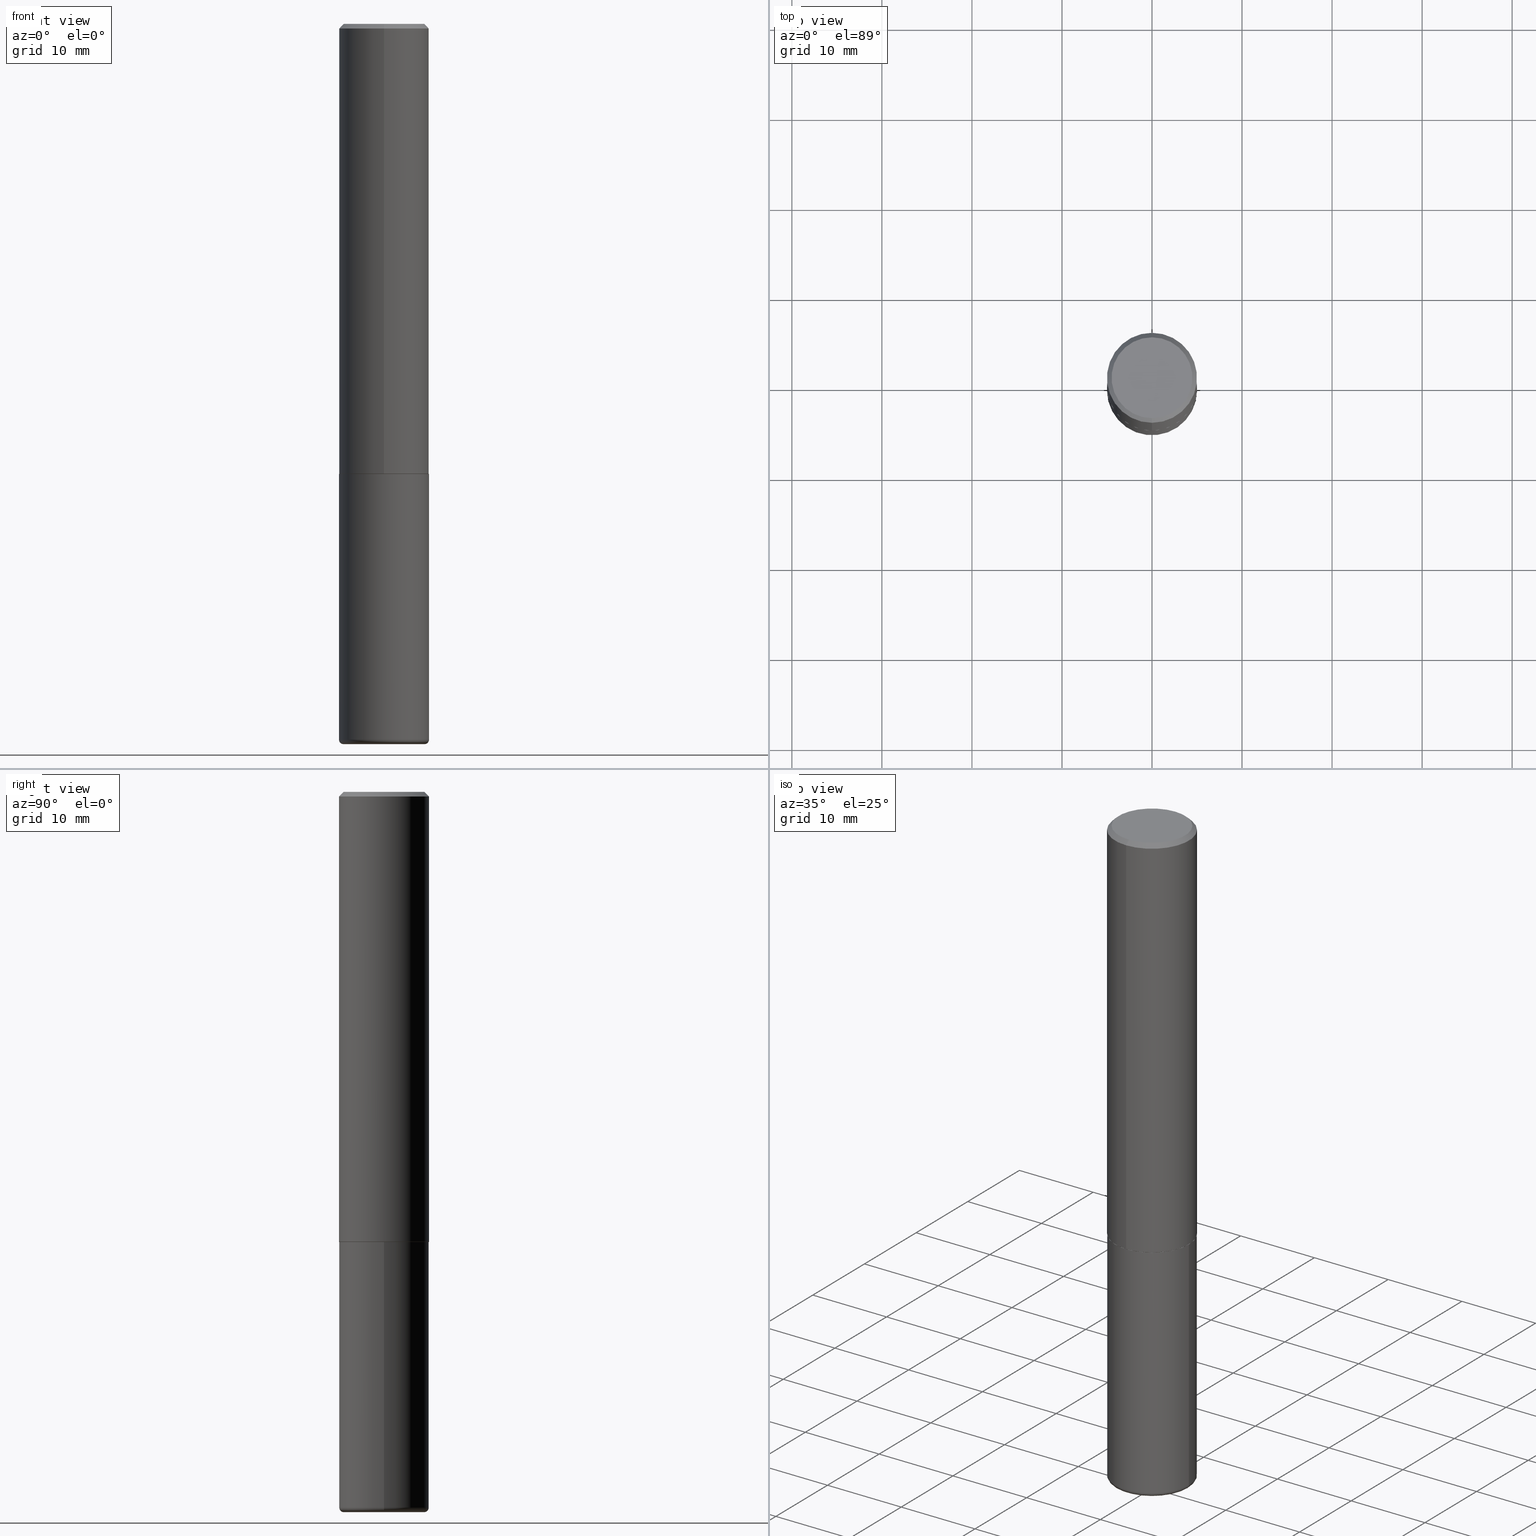
[diagram: canonical four-view strip — front | top / right | iso, engineering-drawing reading convention]
A machine part, canonical four-view strip (front | top / right | iso — engineering-drawing reading convention). The complete STEP part file that produces these views, byte-faithful:
ISO-10303-21;
HEADER;
FILE_DESCRIPTION (( 'STEP AP203' ),
    '1' );
FILE_NAME ('74413.STEP',
    '2024-03-06T15:12:11',
    ( '' ),
    ( '' ),
    'SwSTEP 2.0',
    'SolidWorks 2023',
    '' );
FILE_SCHEMA (( 'CONFIG_CONTROL_DESIGN' ));
ENDSEC;

DATA;
#1 = CARTESIAN_POINT ( 'NONE',  ( 1.374596203102542200E-15, 0.1968499999999999694, -0.02000000000000072900 ) ) ;
#2 = ADVANCED_FACE ( 'NONE', ( #105 ), #323, .T. ) ;
#3 = ADVANCED_FACE ( 'NONE', ( #360 ), #148, .T. ) ;
#4 = APPROVAL_ROLE ( '' ) ;
#5 = CARTESIAN_POINT ( 'NONE',  ( 0.1968499999999999417, -1.230258364554770273E-14, -3.129900000000000571 ) ) ;
#6 = CLOSED_SHELL ( 'NONE', ( #352, #2, #366, #402, #290, #66 ) ) ;
#7 = AXIS2_PLACEMENT_3D ( 'NONE', #239, #138, #301 ) ;
#8 = DIRECTION ( 'NONE',  ( -2.445268841296851437E-29, 3.491767699944464545E-15, 1.000000000000000000 ) ) ;
#9 = ORIENTED_EDGE ( 'NONE', *, *, #195, .F. ) ;
#10 = CYLINDRICAL_SURFACE ( 'NONE', #192, 0.1968499999999999694 ) ;
#11 = ORIENTED_EDGE ( 'NONE', *, *, #340, .T. ) ;
#12 = DATE_AND_TIME ( #57, #39 ) ;
#13 = EDGE_LOOP ( 'NONE', ( #9, #234 ) ) ;
#14 = CC_DESIGN_PERSON_AND_ORGANIZATION_ASSIGNMENT ( #391, #325, ( #266 ) ) ;
#15 = AXIS2_PLACEMENT_3D ( 'NONE', #230, #294, #189 ) ;
#16 = SECURITY_CLASSIFICATION ( '', '', #341 ) ;
#17 = EDGE_LOOP ( 'NONE', ( #58, #178, #314, #363 ) ) ;
#18 = ORIENTED_EDGE ( 'NONE', *, *, #28, .F. ) ;
#19 = CC_DESIGN_DATE_AND_TIME_ASSIGNMENT ( #277, #374, ( #262 ) ) ;
#20 = ORIENTED_EDGE ( 'NONE', *, *, #208, .F. ) ;
#21 = AXIS2_PLACEMENT_3D ( 'NONE', #313, #289, #196 ) ;
#22 = CC_DESIGN_APPROVAL ( #274, ( #16 ) ) ;
#23 = CALENDAR_DATE ( 2024, 6, 3 ) ;
#24 = DIRECTION ( 'NONE',  ( -6.982962677686265922E-15, -1.000000000000000000, 3.491767699944464545E-15 ) ) ;
#25 = DIRECTION ( 'NONE',  ( 2.438088387897960049E-29, -3.491481338843145188E-15, -1.000000000000000000 ) ) ;
#26 = VERTEX_POINT ( 'NONE', #95 ) ;
#27 = FACE_OUTER_BOUND ( 'NONE', #211, .T. ) ;
#28 = EDGE_CURVE ( 'NONE', #109, #334, #322, .T. ) ;
#29 = LINE ( 'NONE', #346, #117 ) ;
#30 = CIRCLE ( 'NONE', #235, 0.1968500000000000527 ) ;
#31 = ORIENTED_EDGE ( 'NONE', *, *, #101, .F. ) ;
#32 = DIRECTION ( 'NONE',  ( 1.000000000000000000, -6.982962677686269866E-15, 0.000000000000000000 ) ) ;
#33 = CARTESIAN_POINT ( 'NONE',  ( -1.350489030861325626E-15, -0.1968500000000001082, -0.01999999999999935510 ) ) ;
#34 = APPROVAL ( #143, 'UNSPECIFIED' ) ;
#35 = LINE ( 'NONE', #417, #264 ) ;
#36 = DESIGN_CONTEXT ( 'detailed design', #111, 'design' ) ;
#37 = DIRECTION ( 'NONE',  ( -2.445268841296851437E-29, 3.491767699944464545E-15, 1.000000000000000000 ) ) ;
#38 = CIRCLE ( 'NONE', #385, 0.1968500000000000250 ) ;
#39 = LOCAL_TIME ( 10, 12, 11.00000000000000000, #404 ) ;
#40 = APPLICATION_PROTOCOL_DEFINITION ( 'international standard', 'config_control_design', 1994, #111 ) ;
#41 = CALENDAR_DATE ( 2024, 6, 3 ) ;
#42 = ORIENTED_EDGE ( 'NONE', *, *, #142, .T. ) ;
#43 = APPROVAL_DATE_TIME ( #356, #34 ) ;
#44 = VECTOR ( 'NONE', #122, 39.37007874015748143 ) ;
#45 = DIRECTION ( 'NONE',  ( 1.000000000000000000, 0.000000000000000000, 0.000000000000000000 ) ) ;
#46 = VERTEX_POINT ( 'NONE', #119 ) ;
#47 = ADVANCED_FACE ( 'NONE', ( #338 ), #251, .T. ) ;
#48 = ORIENTED_EDGE ( 'NONE', *, *, #142, .F. ) ;
#49 = CARTESIAN_POINT ( 'NONE',  ( -1.367613240424807079E-15, -0.1958500000000068797, -1.968499999999999028 ) ) ;
#50 = AXIS2_PLACEMENT_3D ( 'NONE', #280, #372, #349 ) ;
#51 = APPROVAL_PERSON_ORGANIZATION ( #219, #274, #52 ) ;
#52 = APPROVAL_ROLE ( '' ) ;
#53 = VERTEX_POINT ( 'NONE', #181 ) ;
#54 = CARTESIAN_POINT ( 'NONE',  ( 0.000000000000000000, 0.000000000000000000, 0.000000000000000000 ) ) ;
#55 = ORIENTED_EDGE ( 'NONE', *, *, #297, .T. ) ;
#56 = CIRCLE ( 'NONE', #299, 0.1968500000000000250 ) ;
#57 = CALENDAR_DATE ( 2024, 6, 3 ) ;
#58 = ORIENTED_EDGE ( 'NONE', *, *, #167, .F. ) ;
#59 = DIRECTION ( 'NONE',  ( 1.000000000000000000, -6.982962677686267499E-15, 0.000000000000000000 ) ) ;
#60 = EDGE_CURVE ( 'NONE', #82, #46, #157, .T. ) ;
#61 = DIRECTION ( 'NONE',  ( 6.982962677686265922E-15, 1.000000000000000000, -3.491767699944464940E-15 ) ) ;
#62 = ORIENTED_EDGE ( 'NONE', *, *, #60, .F. ) ;
#63 = CARTESIAN_POINT ( 'NONE',  ( -0.1968500000000000250, -7.501780853635190206E-15, -1.968499999999999694 ) ) ;
#64 = CARTESIAN_POINT ( 'NONE',  ( 4.813905344975440714E-29, -6.872981015512730918E-15, -1.968499999999999694 ) ) ;
#65 = LINE ( 'NONE', #33, #198 ) ;
#66 = ADVANCED_FACE ( 'NONE', ( #375 ), #89, .T. ) ;
#67 = DIRECTION ( 'NONE',  ( 1.000000000000000000, -6.982962677686261189E-15, 0.000000000000000000 ) ) ;
#68 = CARTESIAN_POINT ( 'NONE',  ( 4.813511714092851266E-29, -6.873544717340677315E-15, -1.968499999999999694 ) ) ;
#69 = DIRECTION ( 'NONE',  ( 2.445268841296850876E-29, -3.491767699944464940E-15, -1.000000000000000000 ) ) ;
#70 = AXIS2_PLACEMENT_3D ( 'NONE', #318, #126, #226 ) ;
#71 = EDGE_CURVE ( 'NONE', #279, #53, #276, .T. ) ;
#72 = CARTESIAN_POINT ( 'NONE',  ( 0.000000000000000000, 0.000000000000000000, 0.000000000000000000 ) ) ;
#73 = CARTESIAN_POINT ( 'NONE',  ( 1.398703375343757985E-15, 0.1968500000000001360, -6.873544717340683232E-16 ) ) ;
#74 = AXIS2_PLACEMENT_3D ( 'NONE', #76, #304, #253 ) ;
#75 = ORIENTED_EDGE ( 'NONE', *, *, #71, .F. ) ;
#76 = CARTESIAN_POINT ( 'NONE',  ( 7.654072816478859974E-29, -1.092798744244516270E-14, -3.129900000000000571 ) ) ;
#77 = CIRCLE ( 'NONE', #176, 0.1771500000000000019 ) ;
#78 = CC_DESIGN_DATE_AND_TIME_ASSIGNMENT ( #121, #180, ( #16 ) ) ;
#79 = DIRECTION ( 'NONE',  ( -2.445268841296851437E-29, 3.491767699944464545E-15, 1.000000000000000000 ) ) ;
#80 = ORIENTED_EDGE ( 'NONE', *, *, #106, .T. ) ;
#81 = APPROVAL_STATUS ( 'not_yet_approved' ) ;
#82 = VERTEX_POINT ( 'NONE', #256 ) ;
#83 = VECTOR ( 'NONE', #236, 39.37007874015748143 ) ;
#84 = ADVANCED_BREP_SHAPE_REPRESENTATION ( '74413', ( #395, #270, #378 ), #300 ) ;
#85 = APPROVAL_DATE_TIME ( #12, #274 ) ;
#86 = ORIENTED_EDGE ( 'NONE', *, *, #71, .T. ) ;
#87 = PERSON_AND_ORGANIZATION_ROLE ( 'creator' ) ;
#88 = PERSON_AND_ORGANIZATION_ROLE ( 'design_supplier' ) ;
#89 = PLANE ( 'NONE',  #110 ) ;
#90 = AXIS2_PLACEMENT_3D ( 'NONE', #257, #162, #131 ) ;
#91 = EDGE_CURVE ( 'NONE', #153, #26, #30, .T. ) ;
#92 = ORIENTED_EDGE ( 'NONE', *, *, #227, .F. ) ;
#93 = DIRECTION ( 'NONE',  ( -2.445268841296851437E-29, 3.491767699944464545E-15, 1.000000000000000000 ) ) ;
#94 = DIRECTION ( 'NONE',  ( -6.982962677686265133E-15, -1.000000000000000000, 3.491137977679279029E-15 ) ) ;
#95 = CARTESIAN_POINT ( 'NONE',  ( -1.350489030861325626E-15, -0.1968500000000001082, -0.01999999999999935510 ) ) ;
#96 = CARTESIAN_POINT ( 'NONE',  ( 7.702248551960706711E-29, -1.099676962482037231E-14, -3.149600000000000399 ) ) ;
#97 = EDGE_LOOP ( 'NONE', ( #62, #392, #55, #390 ) ) ;
#98 = LINE ( 'NONE', #225, #83 ) ;
#99 = CARTESIAN_POINT ( 'NONE',  ( -1.367613240424807079E-15, -0.1958500000000068797, -1.968499999999999028 ) ) ;
#100 = CARTESIAN_POINT ( 'NONE',  ( -1.281884050883609900E-15, -0.1768499999999998407, 8.395324101811677409E-16 ) ) ;
#101 = EDGE_CURVE ( 'NONE', #334, #273, #29, .T. ) ;
#102 = VECTOR ( 'NONE', #193, 39.37007874015748854 ) ;
#103 = COORDINATED_UNIVERSAL_TIME_OFFSET ( 5, 0, .BEHIND. ) ;
#104 = EDGE_LOOP ( 'NONE', ( #271, #269 ) ) ;
#105 = FACE_OUTER_BOUND ( 'NONE', #187, .T. ) ;
#106 = EDGE_CURVE ( 'NONE', #179, #273, #38, .T. ) ;
#107 = DIRECTION ( 'NONE',  ( 1.000000000000000000, -6.982962677686266711E-15, 4.876176775795935793E-29 ) ) ;
#108 = ORIENTED_EDGE ( 'NONE', *, *, #101, .T. ) ;
#109 = VERTEX_POINT ( 'NONE', #214 ) ;
#110 = AXIS2_PLACEMENT_3D ( 'NONE', #311, #25, #412 ) ;
#111 = APPLICATION_CONTEXT ( 'configuration controlled 3d designs of mechanical parts and assemblies' ) ;
#112 = APPROVAL_PERSON_ORGANIZATION ( #156, #183, #410 ) ;
#113 = SHAPE_DEFINITION_REPRESENTATION ( #249, #84 ) ;
#114 = DIMENSIONAL_EXPONENTS ( 1.000000000000000000, 0.000000000000000000, 0.000000000000000000, 0.000000000000000000, 0.000000000000000000, 0.000000000000000000, 0.000000000000000000 ) ;
#115 = ORIENTED_EDGE ( 'NONE', *, *, #331, .F. ) ;
#116 = COORDINATED_UNIVERSAL_TIME_OFFSET ( 5, 0, .BEHIND. ) ;
#117 = VECTOR ( 'NONE', #160, 39.37007874015748143 ) ;
#118 = PERSON_AND_ORGANIZATION_ROLE ( 'classification_officer' ) ;
#119 = CARTESIAN_POINT ( 'NONE',  ( 1.398703375343782440E-15, 0.1968499999999933914, -1.967500000000000471 ) ) ;
#120 = CYLINDRICAL_SURFACE ( 'NONE', #342, 0.1968500000000001360 ) ;
#121 = DATE_AND_TIME ( #209, #212 ) ;
#122 = DIRECTION ( 'NONE',  ( 5.024295867788490741E-15, 0.7071067811866103003, 0.7071067811864847341 ) ) ;
#123 = DIRECTION ( 'NONE',  ( -2.445268841296851437E-29, 3.491767699944464545E-15, 1.000000000000000000 ) ) ;
#124 = ADVANCED_FACE ( 'NONE', ( #282 ), #120, .T. ) ;
#125 = FACE_OUTER_BOUND ( 'NONE', #206, .T. ) ;
#126 = DIRECTION ( 'NONE',  ( 7.105427357601001859E-15, 1.000000000000000000, -3.491481338843145583E-15 ) ) ;
#127 = AXIS2_PLACEMENT_3D ( 'NONE', #244, #8, #336 ) ;
#128 = UNCERTAINTY_MEASURE_WITH_UNIT (LENGTH_MEASURE( 1.000000000000000082E-05 ), #171, 'distance_accuracy_value', 'NONE');
#129 = APPROVAL_PERSON_ORGANIZATION ( #328, #34, #4 ) ;
#130 = CARTESIAN_POINT ( 'NONE',  ( 4.813511714092851266E-29, -6.873544717340677315E-15, -1.968499999999999694 ) ) ;
#131 = DIRECTION ( 'NONE',  ( -6.982962677686265922E-15, -1.000000000000000000, 4.163344669033670112E-15 ) ) ;
#132 = DIRECTION ( 'NONE',  ( -2.445468806185136597E-29, 3.491481338843145583E-15, 1.000000000000000000 ) ) ;
#133 = CARTESIAN_POINT ( 'NONE',  ( 0.1968500000000000250, -8.247577218615273316E-15, -1.968499999999999694 ) ) ;
#134 = CLOSED_SHELL ( 'NONE', ( #3, #47, #137, #224, #124, #409, #310, #154 ) ) ;
#135 = AXIS2_PLACEMENT_3D ( 'NONE', #191, #69, #61 ) ;
#136 = DIRECTION ( 'NONE',  ( -2.445468806185136597E-29, 3.491481338843145583E-15, 1.000000000000000000 ) ) ;
#137 = ADVANCED_FACE ( 'NONE', ( #218 ), #202, .T. ) ;
#138 = DIRECTION ( 'NONE',  ( -2.445268841296851437E-29, 3.491767699944464545E-15, 1.000000000000000000 ) ) ;
#139 = CYLINDRICAL_SURFACE ( 'NONE', #281, 0.1968499999999999694 ) ;
#140 = ORIENTED_EDGE ( 'NONE', *, *, #106, .F. ) ;
#141 = PERSON ( 'UNSPECIFIED', 'UNSPECIFIED', 'UNSPECIFIED', ('UNSPECIFIED'), ('UNSPECIFIED'), ('UNSPECIFIED') ) ;
#142 = EDGE_CURVE ( 'NONE', #146, #46, #255, .T. ) ;
#143 = APPROVAL_STATUS ( 'not_yet_approved' ) ;
#144 = ORIENTED_EDGE ( 'NONE', *, *, #263, .T. ) ;
#145 = DIRECTION ( 'NONE',  ( 2.438088387897960049E-29, -3.491481338843145188E-15, -1.000000000000000000 ) ) ;
#146 = VERTEX_POINT ( 'NONE', #275 ) ;
#147 = VERTEX_POINT ( 'NONE', #49 ) ;
#148 = CONICAL_SURFACE ( 'NONE', #285, 0.1958499999999999963, 0.7853981633975336552 ) ;
#149 = PERSON_AND_ORGANIZATION ( #141, #199 ) ;
#150 = AXIS2_PLACEMENT_3D ( 'NONE', #344, #254, #383 ) ;
#151 = CC_DESIGN_APPROVAL ( #183, ( #414 ) ) ;
#152 = EDGE_CURVE ( 'NONE', #312, #278, #316, .T. ) ;
#153 = VERTEX_POINT ( 'NONE', #182 ) ;
#154 = ADVANCED_FACE ( 'NONE', ( #308 ), #351, .F. ) ;
#155 = CIRCLE ( 'NONE', #413, 0.1968499999999999694 ) ;
#156 = PERSON_AND_ORGANIZATION ( #141, #199 ) ;
#157 = LINE ( 'NONE', #411, #44 ) ;
#158 = EDGE_CURVE ( 'NONE', #312, #153, #320, .T. ) ;
#159 = CARTESIAN_POINT ( 'NONE',  ( 7.654072816478859974E-29, -1.092798744244516270E-14, -3.129900000000000571 ) ) ;
#160 = DIRECTION ( 'NONE',  ( -2.445468806185136877E-29, 3.491481338843145188E-15, 1.000000000000000000 ) ) ;
#161 = AXIS2_PLACEMENT_3D ( 'NONE', #315, #418, #319 ) ;
#162 = DIRECTION ( 'NONE',  ( -2.445268841296851437E-29, 3.491767699944464545E-15, 1.000000000000000000 ) ) ;
#163 = DIRECTION ( 'NONE',  ( -2.445468806185136877E-29, 3.491481338843145188E-15, 1.000000000000000000 ) ) ;
#164 = DIRECTION ( 'NONE',  ( -2.445468806185136597E-29, 3.491481338843145583E-15, 1.000000000000000000 ) ) ;
#165 = DIRECTION ( 'NONE',  ( 1.000000000000000000, -6.982962677686267499E-15, 0.000000000000000000 ) ) ;
#166 = CARTESIAN_POINT ( 'NONE',  ( 4.813905344975440714E-29, -6.872981015512730918E-15, -1.968499999999999694 ) ) ;
#167 = EDGE_CURVE ( 'NONE', #278, #312, #376, .T. ) ;
#168 = DIRECTION ( 'NONE',  ( -1.000000000000000000, 6.982962677686265922E-15, -4.876176775795935793E-29 ) ) ;
#169 = LINE ( 'NONE', #73, #348 ) ;
#170 = AXIS2_PLACEMENT_3D ( 'NONE', #347, #93, #292 ) ;
#171 =( CONVERSION_BASED_UNIT ( 'INCH', #201 ) LENGTH_UNIT ( ) NAMED_UNIT ( #114 ) );
#172 = ORIENTED_EDGE ( 'NONE', *, *, #216, .F. ) ;
#173 = CARTESIAN_POINT ( 'NONE',  ( 0.000000000000000000, 0.000000000000000000, 0.000000000000000000 ) ) ;
#174 = ORIENTED_EDGE ( 'NONE', *, *, #207, .T. ) ;
#175 = APPLICATION_PROTOCOL_DEFINITION ( 'international standard', 'config_control_design', 1994, #364 ) ;
#176 = AXIS2_PLACEMENT_3D ( 'NONE', #96, #194, #67 ) ;
#177 = EDGE_CURVE ( 'NONE', #147, #82, #329, .T. ) ;
#178 = ORIENTED_EDGE ( 'NONE', *, *, #216, .T. ) ;
#179 = VERTEX_POINT ( 'NONE', #63 ) ;
#180 = DATE_TIME_ROLE ( 'classification_date' ) ;
#181 = CARTESIAN_POINT ( 'NONE',  ( -0.1968499999999999417, -9.529284067101404126E-15, -3.129900000000000571 ) ) ;
#182 = CARTESIAN_POINT ( 'NONE',  ( 1.374596203102542200E-15, 0.1968499999999999694, -0.02000000000000072900 ) ) ;
#183 = APPROVAL ( #81, 'UNSPECIFIED' ) ;
#184 = DIRECTION ( 'NONE',  ( -6.982962677686266711E-15, -1.000000000000000000, 3.491481338843145583E-15 ) ) ;
#185 = AXIS2_PLACEMENT_3D ( 'NONE', #241, #79, #272 ) ;
#186 = LOCAL_TIME ( 10, 12, 11.00000000000000000, #369 ) ;
#187 = EDGE_LOOP ( 'NONE', ( #343, #86, #240, #18 ) ) ;
#188 = ORIENTED_EDGE ( 'NONE', *, *, #258, .T. ) ;
#189 = DIRECTION ( 'NONE',  ( -6.982962677686265133E-15, -1.000000000000000000, 3.491137977679279029E-15 ) ) ;
#190 = DIRECTION ( 'NONE',  ( -2.445268841296851437E-29, 3.491767699944464545E-15, 1.000000000000000000 ) ) ;
#191 = CARTESIAN_POINT ( 'NONE',  ( 1.234936949548815012E-15, 0.1768499999999998407, -5.065124715121833152E-16 ) ) ;
#192 = AXIS2_PLACEMENT_3D ( 'NONE', #173, #233, #107 ) ;
#193 = DIRECTION ( 'NONE',  ( 4.937700262164538576E-15, 0.7071067811865437980, -0.7071067811865511255 ) ) ;
#194 = DIRECTION ( 'NONE',  ( -2.445468806185136597E-29, 3.491481338843145583E-15, 1.000000000000000000 ) ) ;
#195 = EDGE_CURVE ( 'NONE', #109, #279, #267, .T. ) ;
#196 = DIRECTION ( 'NONE',  ( 6.982962677686265133E-15, 1.000000000000000000, -3.491137977679279029E-15 ) ) ;
#197 = AXIS2_PLACEMENT_3D ( 'NONE', #159, #164, #379 ) ;
#198 = VECTOR ( 'NONE', #265, 39.37007874015748854 ) ;
#199 = ORGANIZATION ( 'UNSPECIFIED', 'UNSPECIFIED', '' ) ;
#200 = DIRECTION ( 'NONE',  ( 0.000000000000000000, 0.000000000000000000, 1.000000000000000000 ) ) ;
#201 = LENGTH_MEASURE_WITH_UNIT ( LENGTH_MEASURE( 0.02539999999999999897 ), #205 );
#202 = CONICAL_SURFACE ( 'NONE', #50, 0.1968500000000000527, 0.7853981633974466137 ) ;
#203 = FACE_OUTER_BOUND ( 'NONE', #382, .T. ) ;
#204 = ORIENTED_EDGE ( 'NONE', *, *, #167, .T. ) ;
#205 =( LENGTH_UNIT ( ) NAMED_UNIT ( * ) SI_UNIT ( $, .METRE. ) );
#206 = EDGE_LOOP ( 'NONE', ( #172, #365, #295, #359 ) ) ;
#207 = EDGE_CURVE ( 'NONE', #53, #334, #155, .T. ) ;
#208 = EDGE_CURVE ( 'NONE', #26, #153, #377, .T. ) ;
#209 = CALENDAR_DATE ( 2024, 6, 3 ) ;
#210 = AXIS2_PLACEMENT_3D ( 'NONE', #130, #381, #350 ) ;
#211 = EDGE_LOOP ( 'NONE', ( #75, #345, #242, #221 ) ) ;
#212 = LOCAL_TIME ( 10, 12, 11.00000000000000000, #245 ) ;
#213 = DIRECTION ( 'NONE',  ( 1.000000000000000000, -6.982962677686266711E-15, 0.000000000000000000 ) ) ;
#214 = CARTESIAN_POINT ( 'NONE',  ( 0.1771500000000000019, -1.223380146317249313E-14, -3.149600000000000399 ) ) ;
#215 = EDGE_LOOP ( 'NONE', ( #335, #406, #48, #243 ) ) ;
#216 = EDGE_CURVE ( 'NONE', #278, #26, #65, .T. ) ;
#217 = PERSON_AND_ORGANIZATION_ROLE ( 'creator' ) ;
#218 = FACE_OUTER_BOUND ( 'NONE', #17, .T. ) ;
#219 = PERSON_AND_ORGANIZATION ( #141, #199 ) ;
#220 = TOROIDAL_SURFACE ( 'NONE', #332, 0.1771500000000000019, 0.01969999999999987733 ) ;
#221 = ORIENTED_EDGE ( 'NONE', *, *, #207, .F. ) ;
#222 = CARTESIAN_POINT ( 'NONE',  ( -0.1771500000000000019, -9.633663617761380556E-15, -3.149600000000000399 ) ) ;
#223 = ORIENTED_EDGE ( 'NONE', *, *, #263, .F. ) ;
#224 = ADVANCED_FACE ( 'NONE', ( #125 ), #399, .T. ) ;
#225 = CARTESIAN_POINT ( 'NONE',  ( -1.374596203102542397E-15, -0.1968500000000001360, 6.873544717340683232E-16 ) ) ;
#226 = DIRECTION ( 'NONE',  ( -1.000000000000000000, 7.105427357600965571E-15, 0.000000000000000000 ) ) ;
#227 = EDGE_CURVE ( 'NONE', #53, #179, #35, .T. ) ;
#228 = DIRECTION ( 'NONE',  ( 1.000000000000000000, -6.982962677686271444E-15, 4.883557194083114022E-29 ) ) ;
#229 = LOCAL_TIME ( 10, 12, 11.00000000000000000, #116 ) ;
#230 = CARTESIAN_POINT ( 'NONE',  ( 4.890537682593712927E-31, -6.983535399888942699E-17, -0.02000000000000004205 ) ) ;
#231 = EDGE_CURVE ( 'NONE', #334, #53, #287, .T. ) ;
#232 = PLANE ( 'NONE',  #210 ) ;
#233 = DIRECTION ( 'NONE',  ( -2.445468806185136597E-29, 3.491481338843145583E-15, 1.000000000000000000 ) ) ;
#234 = ORIENTED_EDGE ( 'NONE', *, *, #326, .F. ) ;
#235 = AXIS2_PLACEMENT_3D ( 'NONE', #380, #190, #94 ) ;
#236 = DIRECTION ( 'NONE',  ( -2.445268841296851437E-29, 3.491767699944464940E-15, 1.000000000000000000 ) ) ;
#237 = DIRECTION ( 'NONE',  ( -2.445468806185136597E-29, 3.491481338843145583E-15, 1.000000000000000000 ) ) ;
#238 = DIRECTION ( 'NONE',  ( -6.982962677686265922E-15, -1.000000000000000000, 4.184602492209747448E-15 ) ) ;
#239 = CARTESIAN_POINT ( 'NONE',  ( 4.813511714092851266E-29, -6.873544717340677315E-15, -1.968499999999999694 ) ) ;
#240 = ORIENTED_EDGE ( 'NONE', *, *, #231, .F. ) ;
#241 = CARTESIAN_POINT ( 'NONE',  ( 4.813511714092851266E-29, -6.873544717340677315E-15, -1.968499999999999694 ) ) ;
#242 = ORIENTED_EDGE ( 'NONE', *, *, #28, .T. ) ;
#243 = ORIENTED_EDGE ( 'NONE', *, *, #297, .F. ) ;
#244 = CARTESIAN_POINT ( 'NONE',  ( -5.428821863719041386E-45, 7.752188435212310874E-31, 2.220132924459896583E-16 ) ) ;
#245 = COORDINATED_UNIVERSAL_TIME_OFFSET ( 5, 0, .BEHIND. ) ;
#246 = ORIENTED_EDGE ( 'NONE', *, *, #231, .T. ) ;
#247 = CALENDAR_DATE ( 2024, 6, 3 ) ;
#248 = AXIS2_PLACEMENT_3D ( 'NONE', #54, #309, #24 ) ;
#249 = PRODUCT_DEFINITION_SHAPE ( 'NONE', 'NONE',  #262 ) ;
#250 = DATE_AND_TIME ( #23, #186 ) ;
#251 = CYLINDRICAL_SURFACE ( 'NONE', #248, 0.1968500000000001360 ) ;
#252 = DIRECTION ( 'NONE',  ( -6.982962677686265922E-15, -1.000000000000000000, 3.491767699944464545E-15 ) ) ;
#253 = DIRECTION ( 'NONE',  ( 1.000000000000000000, -6.982962677686271444E-15, 4.883557194083114022E-29 ) ) ;
#254 = DIRECTION ( 'NONE',  ( -2.445268841296851437E-29, 3.491767699944464545E-15, 1.000000000000000000 ) ) ;
#255 = CIRCLE ( 'NONE', #90, 0.1968500000000002470 ) ;
#256 = CARTESIAN_POINT ( 'NONE',  ( 1.395150661665005404E-15, 0.1958499999999931407, -1.968500000000000583 ) ) ;
#257 = CARTESIAN_POINT ( 'NONE',  ( 4.811066445251554069E-29, -6.870052949640732965E-15, -1.967499999999999805 ) ) ;
#258 = EDGE_CURVE ( 'NONE', #46, #146, #307, .T. ) ;
#259 = DIRECTION ( 'NONE',  ( -2.445468806185136597E-29, 3.491481338843145583E-15, 1.000000000000000000 ) ) ;
#260 = CARTESIAN_POINT ( 'NONE',  ( 1.304766576325678705E-15, 0.1768499999999998407, -3.955058252891884244E-16 ) ) ;
#261 = DIRECTION ( 'NONE',  ( -4.937700262164969294E-15, -0.7071067811866054154, 0.7071067811864896191 ) ) ;
#262 = PRODUCT_DEFINITION ( 'UNKNOWN', '', #414, #36 ) ;
#263 = EDGE_CURVE ( 'NONE', #273, #179, #56, .T. ) ;
#264 = VECTOR ( 'NONE', #163, 39.37007874015748143 ) ;
#265 = DIRECTION ( 'NONE',  ( -4.851104656540954809E-15, -0.7071067811865486830, -0.7071067811865462405 ) ) ;
#266 = PRODUCT ( '74413', '74413', '', ( #327 ) ) ;
#267 = CIRCLE ( 'NONE', #161, 0.1771500000000000019 ) ;
#268 = DIRECTION ( 'NONE',  ( 1.000000000000000000, -6.982962677686266711E-15, 4.876176775795935793E-29 ) ) ;
#269 = ORIENTED_EDGE ( 'NONE', *, *, #357, .F. ) ;
#270 = MANIFOLD_SOLID_BREP ( 'Body-Move/Copy2[2]', #134 ) ;
#271 = ORIENTED_EDGE ( 'NONE', *, *, #177, .F. ) ;
#272 = DIRECTION ( 'NONE',  ( -6.982962677686265922E-15, -1.000000000000000000, 4.184602492209747448E-15 ) ) ;
#273 = VERTEX_POINT ( 'NONE', #133 ) ;
#274 = APPROVAL ( #333, 'UNSPECIFIED' ) ;
#275 = CARTESIAN_POINT ( 'NONE',  ( -1.374596203102495065E-15, -0.1968500000000071026, -1.967499999999998916 ) ) ;
#276 = CIRCLE ( 'NONE', #70, 0.01969999999999989468 ) ;
#277 = DATE_AND_TIME ( #247, #229 ) ;
#278 = VERTEX_POINT ( 'NONE', #100 ) ;
#279 = VERTEX_POINT ( 'NONE', #222 ) ;
#280 = CARTESIAN_POINT ( 'NONE',  ( 4.890537682593712927E-31, -6.983535399888942699E-17, -0.02000000000000004205 ) ) ;
#281 = AXIS2_PLACEMENT_3D ( 'NONE', #72, #237, #268 ) ;
#282 = FACE_OUTER_BOUND ( 'NONE', #405, .T. ) ;
#283 = PERSON_AND_ORGANIZATION ( #141, #199 ) ;
#284 = CARTESIAN_POINT ( 'NONE',  ( 0.000000000000000000, 0.000000000000000000, 0.000000000000000000 ) ) ;
#285 = AXIS2_PLACEMENT_3D ( 'NONE', #68, #388, #238 ) ;
#286 = CARTESIAN_POINT ( 'NONE',  ( 7.654072816478859974E-29, -1.092798744244516270E-14, -3.129900000000000571 ) ) ;
#287 = CIRCLE ( 'NONE', #197, 0.1968499999999999694 ) ;
#288 = DIRECTION ( 'NONE',  ( -2.445468806185136597E-29, 3.491481338843145583E-15, 1.000000000000000000 ) ) ;
#289 = DIRECTION ( 'NONE',  ( 2.445268841296851437E-29, -3.491767699944464545E-15, -1.000000000000000000 ) ) ;
#290 = ADVANCED_FACE ( 'NONE', ( #27 ), #220, .T. ) ;
#291 = CARTESIAN_POINT ( 'NONE',  ( 4.811066445251554069E-29, -6.870052949640732965E-15, -1.967499999999999805 ) ) ;
#292 = DIRECTION ( 'NONE',  ( -6.982962677686265922E-15, -1.000000000000000000, 4.184602492209747448E-15 ) ) ;
#293 = AXIS2_PLACEMENT_3D ( 'NONE', #394, #184, #213 ) ;
#294 = DIRECTION ( 'NONE',  ( -2.445268841296851437E-29, 3.491767699944464545E-15, 1.000000000000000000 ) ) ;
#295 = ORIENTED_EDGE ( 'NONE', *, *, #158, .T. ) ;
#296 =( NAMED_UNIT ( * ) SI_UNIT ( $, .STERADIAN. ) SOLID_ANGLE_UNIT ( ) );
#297 = EDGE_CURVE ( 'NONE', #147, #146, #384, .T. ) ;
#298 = FACE_OUTER_BOUND ( 'NONE', #401, .T. ) ;
#299 = AXIS2_PLACEMENT_3D ( 'NONE', #166, #132, #165 ) ;
#300 =( GEOMETRIC_REPRESENTATION_CONTEXT ( 3 ) GLOBAL_UNCERTAINTY_ASSIGNED_CONTEXT ( ( #128 ) ) GLOBAL_UNIT_ASSIGNED_CONTEXT ( ( #171, #353, #296 ) ) REPRESENTATION_CONTEXT ( 'NONE', 'WORKASPACE' ) );
#301 = DIRECTION ( 'NONE',  ( -6.982962677686265922E-15, -1.000000000000000000, 4.184602492209747448E-15 ) ) ;
#302 = ORIENTED_EDGE ( 'NONE', *, *, #340, .F. ) ;
#303 = CARTESIAN_POINT ( 'NONE',  ( 0.000000000000000000, 0.000000000000000000, 0.000000000000000000 ) ) ;
#304 = DIRECTION ( 'NONE',  ( -2.445468806185136597E-29, 3.491481338843145583E-15, 1.000000000000000000 ) ) ;
#305 = PERSON_AND_ORGANIZATION ( #141, #199 ) ;
#306 = ORIENTED_EDGE ( 'NONE', *, *, #227, .T. ) ;
#307 = CIRCLE ( 'NONE', #354, 0.1968500000000002470 ) ;
#308 = FACE_OUTER_BOUND ( 'NONE', #398, .T. ) ;
#309 = DIRECTION ( 'NONE',  ( -2.445268841296851437E-29, 3.491767699944464545E-15, 1.000000000000000000 ) ) ;
#310 = ADVANCED_FACE ( 'NONE', ( #415 ), #232, .F. ) ;
#311 = CARTESIAN_POINT ( 'NONE',  ( 7.702248551960706711E-29, -1.099676962482037231E-14, -3.149600000000000399 ) ) ;
#312 = VERTEX_POINT ( 'NONE', #260 ) ;
#313 = CARTESIAN_POINT ( 'NONE',  ( 4.890537682593712927E-31, -6.983535399888942699E-17, -0.02000000000000004205 ) ) ;
#314 = ORIENTED_EDGE ( 'NONE', *, *, #208, .T. ) ;
#315 = CARTESIAN_POINT ( 'NONE',  ( 7.702248551960706711E-29, -1.099676962482037231E-14, -3.149600000000000399 ) ) ;
#316 = CIRCLE ( 'NONE', #127, 0.1768499999999998407 ) ;
#317 = CC_DESIGN_APPROVAL ( #34, ( #262 ) ) ;
#318 = CARTESIAN_POINT ( 'NONE',  ( -0.1771500000000000019, -9.669260986046144223E-15, -3.129900000000000571 ) ) ;
#319 = DIRECTION ( 'NONE',  ( 1.000000000000000000, -6.982962677686261189E-15, 0.000000000000000000 ) ) ;
#320 = LINE ( 'NONE', #1, #102 ) ;
#321 = CARTESIAN_POINT ( 'NONE',  ( 7.654072816478859974E-29, -1.092798744244516270E-14, -3.129900000000000571 ) ) ;
#322 = CIRCLE ( 'NONE', #293, 0.01969999999999989468 ) ;
#323 = TOROIDAL_SURFACE ( 'NONE', #74, 0.1771500000000000019, 0.01969999999999987733 ) ;
#324 = LOCAL_TIME ( 10, 12, 11.00000000000000000, #103 ) ;
#325 = PERSON_AND_ORGANIZATION_ROLE ( 'design_owner' ) ;
#326 = EDGE_CURVE ( 'NONE', #279, #109, #77, .T. ) ;
#327 = MECHANICAL_CONTEXT ( 'NONE', #364, 'mechanical' ) ;
#328 = PERSON_AND_ORGANIZATION ( #141, #199 ) ;
#329 = CIRCLE ( 'NONE', #170, 0.1958499999999999963 ) ;
#330 = CC_DESIGN_PERSON_AND_ORGANIZATION_ASSIGNMENT ( #149, #88, ( #414 ) ) ;
#331 = EDGE_CURVE ( 'NONE', #146, #26, #98, .T. ) ;
#332 = AXIS2_PLACEMENT_3D ( 'NONE', #286, #259, #228 ) ;
#333 = APPROVAL_STATUS ( 'not_yet_approved' ) ;
#334 = VERTEX_POINT ( 'NONE', #5 ) ;
#335 = ORIENTED_EDGE ( 'NONE', *, *, #177, .T. ) ;
#336 = DIRECTION ( 'NONE',  ( -6.982962677686265922E-15, -1.000000000000000000, 3.491767699944464940E-15 ) ) ;
#337 = APPROVAL_DATE_TIME ( #250, #183 ) ;
#338 = FACE_OUTER_BOUND ( 'NONE', #370, .T. ) ;
#339 = CC_DESIGN_PERSON_AND_ORGANIZATION_ASSIGNMENT ( #400, #118, ( #16 ) ) ;
#340 = EDGE_CURVE ( 'NONE', #46, #153, #169, .T. ) ;
#341 = SECURITY_CLASSIFICATION_LEVEL ( 'unclassified' ) ;
#342 = AXIS2_PLACEMENT_3D ( 'NONE', #284, #123, #252 ) ;
#343 = ORIENTED_EDGE ( 'NONE', *, *, #195, .T. ) ;
#344 = CARTESIAN_POINT ( 'NONE',  ( -5.428821863719041386E-45, 7.752188435212310874E-31, 2.220132924459896583E-16 ) ) ;
#345 = ORIENTED_EDGE ( 'NONE', *, *, #326, .T. ) ;
#346 = CARTESIAN_POINT ( 'NONE',  ( 0.1968499999999999694, -1.374596203102541411E-15, 9.598753983154298056E-30 ) ) ;
#347 = CARTESIAN_POINT ( 'NONE',  ( 4.813511714092851266E-29, -6.873544717340677315E-15, -1.968499999999999694 ) ) ;
#348 = VECTOR ( 'NONE', #355, 39.37007874015748143 ) ;
#349 = DIRECTION ( 'NONE',  ( 6.982962677686265133E-15, 1.000000000000000000, -3.491137977679279029E-15 ) ) ;
#350 = DIRECTION ( 'NONE',  ( -6.982962677686265922E-15, -1.000000000000000000, 3.491767699944464940E-15 ) ) ;
#351 = PLANE ( 'NONE',  #135 ) ;
#352 = ADVANCED_FACE ( 'NONE', ( #389 ), #10, .T. ) ;
#353 =( NAMED_UNIT ( * ) PLANE_ANGLE_UNIT ( ) SI_UNIT ( $, .RADIAN. ) );
#354 = AXIS2_PLACEMENT_3D ( 'NONE', #291, #37, #387 ) ;
#355 = DIRECTION ( 'NONE',  ( -2.445268841296851437E-29, 3.491767699944464940E-15, 1.000000000000000000 ) ) ;
#356 = DATE_AND_TIME ( #41, #324 ) ;
#357 = EDGE_CURVE ( 'NONE', #82, #147, #368, .T. ) ;
#358 = CARTESIAN_POINT ( 'NONE',  ( 4.813905344975440714E-29, -6.872981015512730918E-15, -1.968499999999999694 ) ) ;
#359 = ORIENTED_EDGE ( 'NONE', *, *, #91, .T. ) ;
#360 = FACE_OUTER_BOUND ( 'NONE', #215, .T. ) ;
#361 = CONICAL_SURFACE ( 'NONE', #185, 0.1958499999999999963, 0.7853981633975336552 ) ;
#362 = FACE_OUTER_BOUND ( 'NONE', #97, .T. ) ;
#363 = ORIENTED_EDGE ( 'NONE', *, *, #158, .F. ) ;
#364 = APPLICATION_CONTEXT ( 'configuration controlled 3d designs of mechanical parts and assemblies' ) ;
#365 = ORIENTED_EDGE ( 'NONE', *, *, #152, .F. ) ;
#366 = ADVANCED_FACE ( 'NONE', ( #203 ), #397, .F. ) ;
#367 = ORIENTED_EDGE ( 'NONE', *, *, #152, .T. ) ;
#368 = CIRCLE ( 'NONE', #7, 0.1958499999999999963 ) ;
#369 = COORDINATED_UNIVERSAL_TIME_OFFSET ( 5, 0, .BEHIND. ) ;
#370 = EDGE_LOOP ( 'NONE', ( #42, #11, #20, #115 ) ) ;
#371 = EDGE_LOOP ( 'NONE', ( #246, #306, #223, #31 ) ) ;
#372 = DIRECTION ( 'NONE',  ( 2.445268841296851437E-29, -3.491767699944464545E-15, -1.000000000000000000 ) ) ;
#373 = PRODUCT_RELATED_PRODUCT_CATEGORY ( 'detail', '', ( #266 ) ) ;
#374 = DATE_TIME_ROLE ( 'creation_date' ) ;
#375 = FACE_OUTER_BOUND ( 'NONE', #13, .T. ) ;
#376 = CIRCLE ( 'NONE', #150, 0.1768499999999998407 ) ;
#377 = CIRCLE ( 'NONE', #15, 0.1968500000000000527 ) ;
#378 = AXIS2_PLACEMENT_3D ( 'NONE', #303, #200, #45 ) ;
#379 = DIRECTION ( 'NONE',  ( 1.000000000000000000, -6.982962677686269866E-15, 0.000000000000000000 ) ) ;
#380 = CARTESIAN_POINT ( 'NONE',  ( 4.890537682593712927E-31, -6.983535399888942699E-17, -0.02000000000000004205 ) ) ;
#381 = DIRECTION ( 'NONE',  ( -2.445268841296850876E-29, 3.491767699944464940E-15, 1.000000000000000000 ) ) ;
#382 = EDGE_LOOP ( 'NONE', ( #144, #80 ) ) ;
#383 = DIRECTION ( 'NONE',  ( -6.982962677686265922E-15, -1.000000000000000000, 3.491767699944464940E-15 ) ) ;
#384 = LINE ( 'NONE', #99, #393 ) ;
#385 = AXIS2_PLACEMENT_3D ( 'NONE', #64, #288, #59 ) ;
#386 = CC_DESIGN_SECURITY_CLASSIFICATION ( #16, ( #414 ) ) ;
#387 = DIRECTION ( 'NONE',  ( -6.982962677686265922E-15, -1.000000000000000000, 4.163344669033670112E-15 ) ) ;
#388 = DIRECTION ( 'NONE',  ( -2.445268841296851437E-29, 3.491767699944464545E-15, 1.000000000000000000 ) ) ;
#389 = FACE_OUTER_BOUND ( 'NONE', #371, .T. ) ;
#390 = ORIENTED_EDGE ( 'NONE', *, *, #258, .F. ) ;
#391 = PERSON_AND_ORGANIZATION ( #141, #199 ) ;
#392 = ORIENTED_EDGE ( 'NONE', *, *, #357, .T. ) ;
#393 = VECTOR ( 'NONE', #261, 39.37007874015748143 ) ;
#394 = CARTESIAN_POINT ( 'NONE',  ( 0.1771500000000000019, -1.216501928079728352E-14, -3.129900000000000571 ) ) ;
#395 = MANIFOLD_SOLID_BREP ( 'Body-Move/Copy2[1]', #6 ) ;
#396 = ORIENTED_EDGE ( 'NONE', *, *, #331, .T. ) ;
#397 = PLANE ( 'NONE',  #407 ) ;
#398 = EDGE_LOOP ( 'NONE', ( #367, #204 ) ) ;
#399 = CONICAL_SURFACE ( 'NONE', #21, 0.1968500000000000527, 0.7853981633974466137 ) ;
#400 = PERSON_AND_ORGANIZATION ( #141, #199 ) ;
#401 = EDGE_LOOP ( 'NONE', ( #92, #174, #108, #140 ) ) ;
#402 = ADVANCED_FACE ( 'NONE', ( #298 ), #139, .T. ) ;
#403 = ORIENTED_EDGE ( 'NONE', *, *, #91, .F. ) ;
#404 = COORDINATED_UNIVERSAL_TIME_OFFSET ( 5, 0, .BEHIND. ) ;
#405 = EDGE_LOOP ( 'NONE', ( #302, #188, #396, #403 ) ) ;
#406 = ORIENTED_EDGE ( 'NONE', *, *, #60, .T. ) ;
#407 = AXIS2_PLACEMENT_3D ( 'NONE', #358, #145, #168 ) ;
#408 = CC_DESIGN_PERSON_AND_ORGANIZATION_ASSIGNMENT ( #283, #217, ( #414 ) ) ;
#409 = ADVANCED_FACE ( 'NONE', ( #362 ), #361, .T. ) ;
#410 = APPROVAL_ROLE ( '' ) ;
#411 = CARTESIAN_POINT ( 'NONE',  ( 1.391597947986204111E-15, 0.1958499999999931407, -1.968500000000000583 ) ) ;
#412 = DIRECTION ( 'NONE',  ( -1.000000000000000000, 6.982962677686265922E-15, -4.876176775795935793E-29 ) ) ;
#413 = AXIS2_PLACEMENT_3D ( 'NONE', #321, #136, #32 ) ;
#414 = PRODUCT_DEFINITION_FORMATION_WITH_SPECIFIED_SOURCE ( 'ANY', '', #266, .NOT_KNOWN. ) ;
#415 = FACE_OUTER_BOUND ( 'NONE', #104, .T. ) ;
#416 = CC_DESIGN_PERSON_AND_ORGANIZATION_ASSIGNMENT ( #305, #87, ( #262 ) ) ;
#417 = CARTESIAN_POINT ( 'NONE',  ( -0.1968499999999999694, 1.398703375343756999E-15, -9.682923725166782276E-30 ) ) ;
#418 = DIRECTION ( 'NONE',  ( -2.445468806185136597E-29, 3.491481338843145583E-15, 1.000000000000000000 ) ) ;
ENDSEC;
END-ISO-10303-21;
